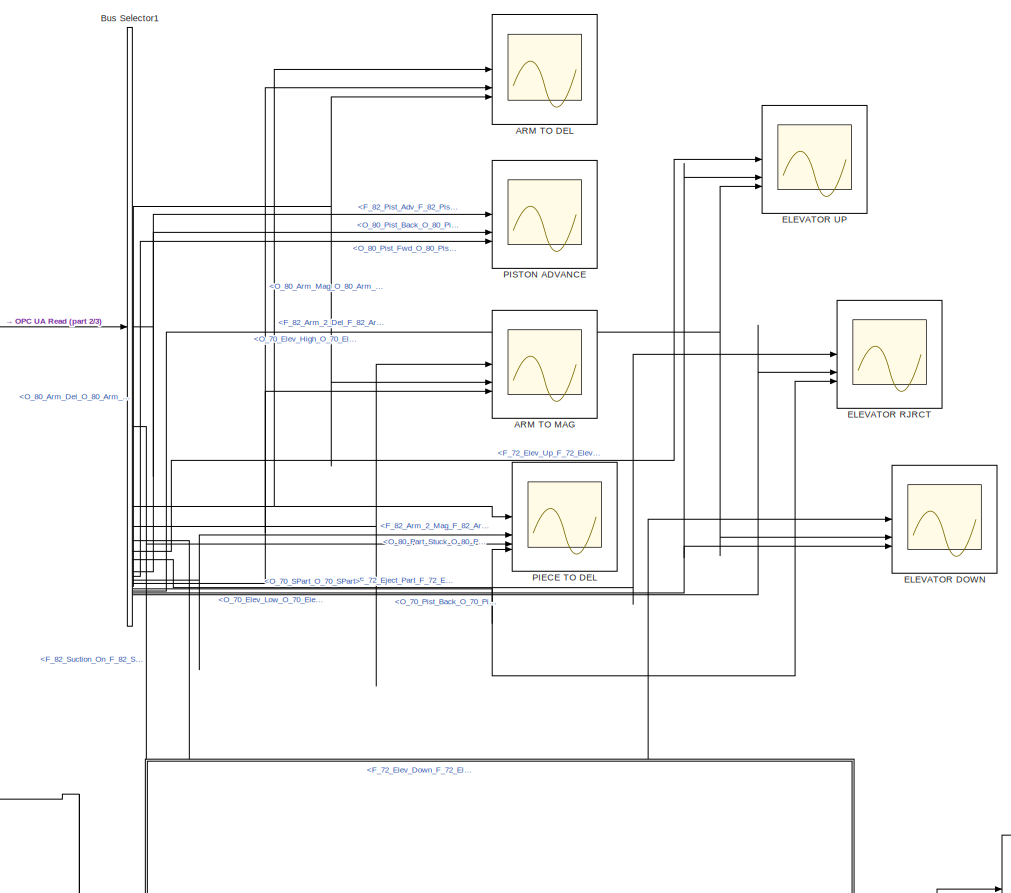
[diagram: root canvas - part 1/3, top center region]
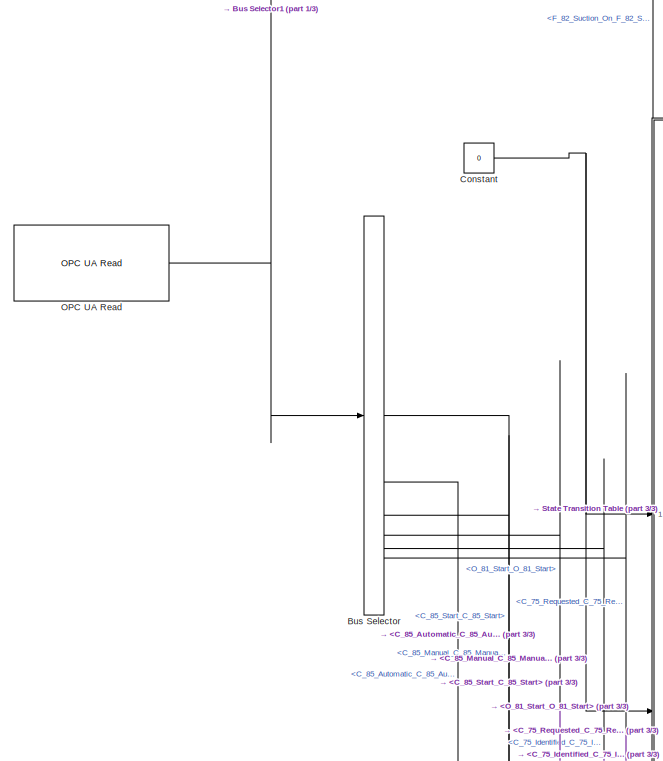
[diagram: root canvas - part 2/3, middle left region]
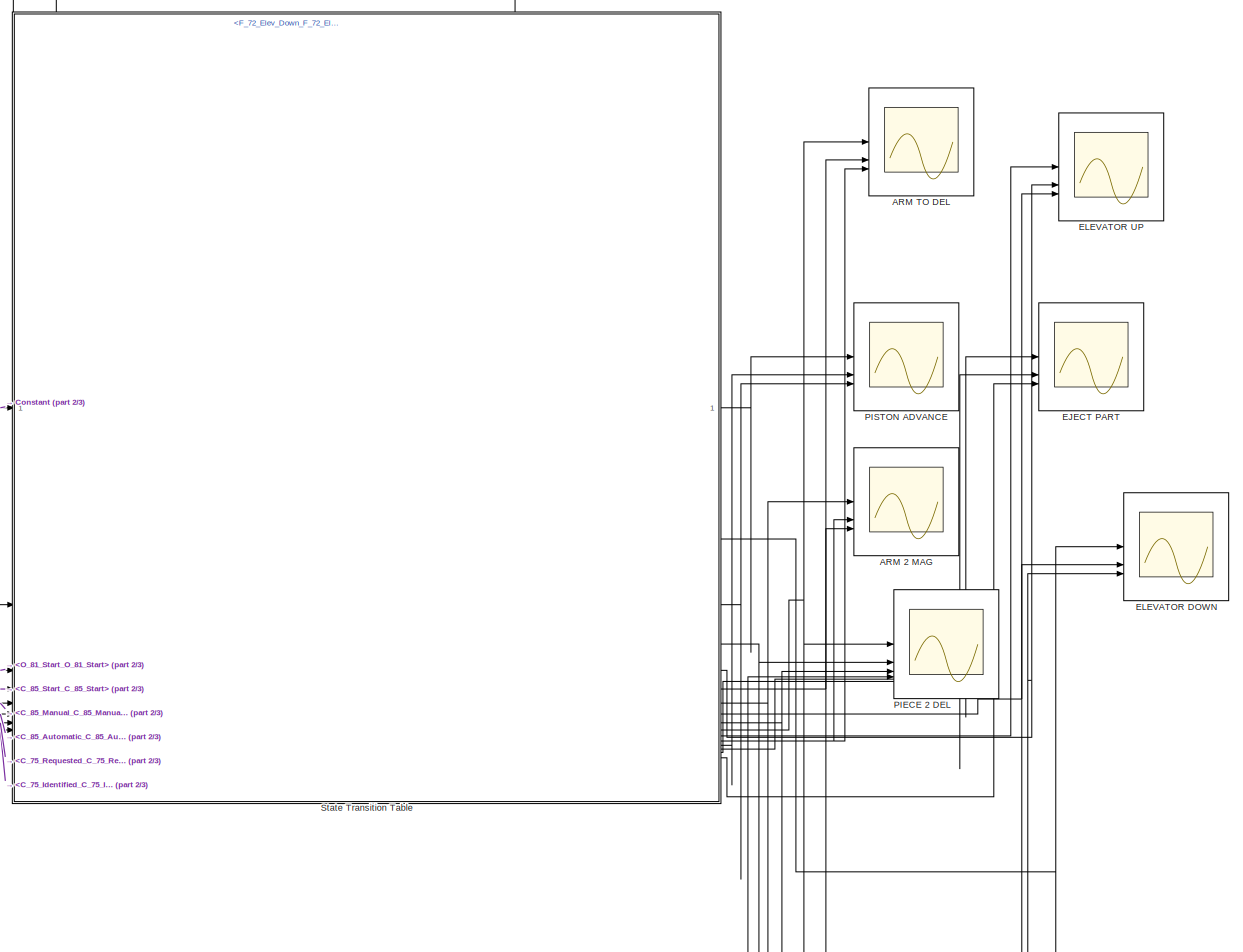
[diagram: root canvas - part 3/3, middle right region]
MODEL slx_66a3c16fe3e1
KIND model
CONFIG AbsTol = auto
CONFIG EnableMultiTasking = off
CONFIG FixedStep = 0.1
CONFIG MaxStep = auto
CONFIG MinStep = auto
CONFIG RelTol = 1e-3
CONFIG SampleTimeConstraint = Unconstrained
CONFIG SolverName = FixedStepAuto
CONFIG StartTime = 0.0
CONFIG StopTime = 30
BLOCK [Scope] ARM 2 MAG 
  Floating = off
  NumInputPorts = 3
  ScopeSpecificationString = Simulink.scopes.TimeScopeBlockCfg('CurrentConfiguration', extmgr.ConfigurationSet(extmgr.Configuration('Core','General UI',true,'FigureColor',[1 1 1]),extmgr.Configuration('Core','Source UI',true),extmgr.Configuration('Sources','WiredSimulink',true,'DataLoggingVariableName','ScopeData11'),extmgr.Configuration('Visuals','Time Domain',true,'SerializedDisplays',{struct('MinYLimReal','-0.125','MaxYLim...<+3624ch>
BLOCK [Scope] ARM TO DEL
  Floating = off
  NumInputPorts = 3
  ScopeSpecificationString = Simulink.scopes.TimeScopeBlockCfg('CurrentConfiguration', extmgr.ConfigurationSet(extmgr.Configuration('Core','General UI',true,'FigureColor',[1 1 1]),extmgr.Configuration('Core','Source UI',true),extmgr.Configuration('Sources','WiredSimulink',true),extmgr.Configuration('Visuals','Time Domain',true,'SerializedDisplays',{struct('MinYLimReal','-0.125','MaxYLimReal','1.125','YLabelReal','','MinYLimMa...<+3253ch>
BLOCK [Scope] ARM TO DEL 
  Floating = off
  NumInputPorts = 3
  ScopeSpecificationString = Simulink.scopes.TimeScopeBlockCfg('CurrentConfiguration', extmgr.ConfigurationSet(extmgr.Configuration('Core','General UI',true,'FigureColor',[1 1 1]),extmgr.Configuration('Core','Source UI',true),extmgr.Configuration('Sources','WiredSimulink',true,'DataLoggingVariableName','ScopeData1'),extmgr.Configuration('Visuals','Time Domain',true,'SerializedDisplays',{struct('MinYLimReal','-0.125','MaxYLimR...<+3305ch>
BLOCK [Scope] ARM TO MAG 
  Floating = off
  NumInputPorts = 3
  ScopeSpecificationString = Simulink.scopes.TimeScopeBlockCfg('CurrentConfiguration', extmgr.ConfigurationSet(extmgr.Configuration('Core','General UI',true,'FigureColor',[1 1 1]),extmgr.Configuration('Core','Source UI',true),extmgr.Configuration('Sources','WiredSimulink',true,'DataLoggingVariableName','ScopeData3'),extmgr.Configuration('Visuals','Time Domain',true,'SerializedDisplays',{struct('MinYLimReal','-0.125','MaxYLimR...<+3292ch>
BLOCK [BusSelector] Bus Selector
  OutputSignals = C_85_Manual_C_85_Manual,C_85_Automatic_C_85_Automatic,C_85_Start_C_85_Start,O_81_Start_O_81_Start,C_75_Identified_C_75_Identified,C_75_Requested_C_75_Requested
BLOCK [BusSelector] Bus Selector1
  OutputSignals = F_82_Pist_Adv_F_82_Pist_Adv,F_82_Suction_On_F_82_Suction_On,F_82_Suction_Off_F_82_Suction_Off,F_82_Arm_2_Del_F_82_Arm_2_Del,F_82_Arm_2_Mag_F_82_Arm_2_Mag,F_72_Elev_Down_F_72_Elev_Down,F_72_Elev_Up_F_72_Elev_Up,F_72_Eject_Part_F_72_Eject_Part,F_72_Air_On_F_72_Air_On,O_80_Pist_Back_O_80_Pist_Back,O_80_Pist_Fwd_O_80_Pist_Fwd,O_80_Part_Stuck_O_80_Part_Stuck,O_80_Arm_Mag_O_80_Arm_Mag,O_80_Arm_Del_O_80_...<+117ch>
BLOCK [Constant] Constant
  Value = 0
BLOCK [Scope] EJECT PART
  Floating = off
  NumInputPorts = 3
  ScopeSpecificationString = Simulink.scopes.TimeScopeBlockCfg('CurrentConfiguration', extmgr.ConfigurationSet(extmgr.Configuration('Core','General UI',true,'FigureColor',[1 1 1]),extmgr.Configuration('Core','Source UI',true),extmgr.Configuration('Sources','WiredSimulink',true,'DataLoggingVariableName','ScopeData10'),extmgr.Configuration('Visuals','Time Domain',true,'SerializedDisplays',{struct('MinYLimReal','-0.125','MaxYLim...<+3628ch>
BLOCK [Scope] ELEVATOR DOWN
  Floating = off
  NumInputPorts = 3
  ScopeSpecificationString = Simulink.scopes.TimeScopeBlockCfg('CurrentConfiguration', extmgr.ConfigurationSet(extmgr.Configuration('Core','General UI',true,'FigureColor',[1 1 1]),extmgr.Configuration('Core','Source UI',true),extmgr.Configuration('Sources','WiredSimulink',true,'DataLoggingVariableName','ScopeData13'),extmgr.Configuration('Visuals','Time Domain',true,'SerializedDisplays',{struct('MinYLimReal','-0.125','MaxYLim...<+3627ch>
BLOCK [Scope] ELEVATOR DOWN 
  Floating = off
  NumInputPorts = 3
  ScopeSpecificationString = Simulink.scopes.TimeScopeBlockCfg('CurrentConfiguration', extmgr.ConfigurationSet(extmgr.Configuration('Core','General UI',true,'FigureColor',[1 1 1]),extmgr.Configuration('Core','Source UI',true),extmgr.Configuration('Sources','WiredSimulink',true,'DataLoggingVariableName','ScopeData7'),extmgr.Configuration('Visuals','Time Domain',true,'SerializedDisplays',{struct('MinYLimReal','-0.125','MaxYLimR...<+3616ch>
BLOCK [Scope] ELEVATOR RJRCT 
  Floating = off
  NumInputPorts = 3
  ScopeSpecificationString = Simulink.scopes.TimeScopeBlockCfg('CurrentConfiguration', extmgr.ConfigurationSet(extmgr.Configuration('Core','General UI',true,'FigureColor',[1 1 1]),extmgr.Configuration('Core','Source UI',true),extmgr.Configuration('Sources','WiredSimulink',true,'DataLoggingVariableName','ScopeData6'),extmgr.Configuration('Visuals','Time Domain',true,'SerializedDisplays',{struct('MinYLimReal','-0.125','MaxYLimR...<+3612ch>
BLOCK [Scope] ELEVATOR UP
  Floating = off
  NumInputPorts = 3
  ScopeSpecificationString = Simulink.scopes.TimeScopeBlockCfg('CurrentConfiguration', extmgr.ConfigurationSet(extmgr.Configuration('Core','General UI',true,'FigureColor',[1 1 1]),extmgr.Configuration('Core','Source UI',true),extmgr.Configuration('Sources','WiredSimulink',true,'DataLoggingVariableName','ScopeData5'),extmgr.Configuration('Visuals','Time Domain',true,'SerializedDisplays',{struct('MinYLimReal','-0.125','MaxYLimR...<+3612ch>
BLOCK [Scope] ELEVATOR UP 
  Floating = off
  NumInputPorts = 3
  ScopeSpecificationString = Simulink.scopes.TimeScopeBlockCfg('CurrentConfiguration', extmgr.ConfigurationSet(extmgr.Configuration('Core','General UI',true,'FigureColor',[1 1 1]),extmgr.Configuration('Core','Source UI',true),extmgr.Configuration('Sources','WiredSimulink',true,'DataLoggingVariableName','ScopeData8'),extmgr.Configuration('Visuals','Time Domain',true,'SerializedDisplays',{struct('MinYLimReal','-0.125','MaxYLimR...<+3624ch>
BLOCK [Reference] OPC UA Read  REF=opcualib/OPC UA Read
  SourceBlock = opcualib/OPC UA Read
  SourceType = opcUARead
BLOCK [Scope] PIECE 2 DEL
  Floating = off
  NumInputPorts = 4
  ScopeSpecificationString = Simulink.scopes.TimeScopeBlockCfg('CurrentConfiguration', extmgr.ConfigurationSet(extmgr.Configuration('Core','General UI',true,'FigureColor',[1 1 1]),extmgr.Configuration('Core','Source UI',true),extmgr.Configuration('Sources','WiredSimulink',true,'DataLoggingVariableName','ScopeData12'),extmgr.Configuration('Visuals','Time Domain',true,'SerializedDisplays',{struct('MinYLimReal','-0.125','MaxYLim...<+4089ch>
BLOCK [Scope] PIECE TO DEL
  Floating = off
  NumInputPorts = 4
  ScopeSpecificationString = Simulink.scopes.TimeScopeBlockCfg('CurrentConfiguration', extmgr.ConfigurationSet(extmgr.Configuration('Core','General UI',true,'FigureColor',[1 1 1]),extmgr.Configuration('Core','Source UI',true),extmgr.Configuration('Sources','WiredSimulink',true,'DataLoggingVariableName','ScopeData4'),extmgr.Configuration('Visuals','Time Domain',true,'SerializedDisplays',{struct('MinYLimReal','-0.125','MaxYLimR...<+4073ch>
BLOCK [Scope] PISTON ADVANCE
  Floating = off
  NumInputPorts = 3
  ScopeSpecificationString = Simulink.scopes.TimeScopeBlockCfg('CurrentConfiguration', extmgr.ConfigurationSet(extmgr.Configuration('Core','General UI',true,'FigureColor',[1 1 1]),extmgr.Configuration('Core','Source UI',true),extmgr.Configuration('Sources','WiredSimulink',true,'DataLoggingVariableName','ScopeData2'),extmgr.Configuration('Visuals','Time Domain',true,'SerializedDisplays',{struct('MinYLimReal','-0.125','MaxYLimR...<+3296ch>
BLOCK [Scope] PISTON ADVANCE 
  Floating = off
  NumInputPorts = 3
  ScopeSpecificationString = Simulink.scopes.TimeScopeBlockCfg('CurrentConfiguration', extmgr.ConfigurationSet(extmgr.Configuration('Core','General UI',true,'FigureColor',[1 1 1]),extmgr.Configuration('Core','Source UI',true),extmgr.Configuration('Sources','WiredSimulink',true,'DataLoggingVariableName','ScopeData9'),extmgr.Configuration('Visuals','Time Domain',true,'SerializedDisplays',{struct('MinYLimReal','-0.125','MaxYLimR...<+3309ch>
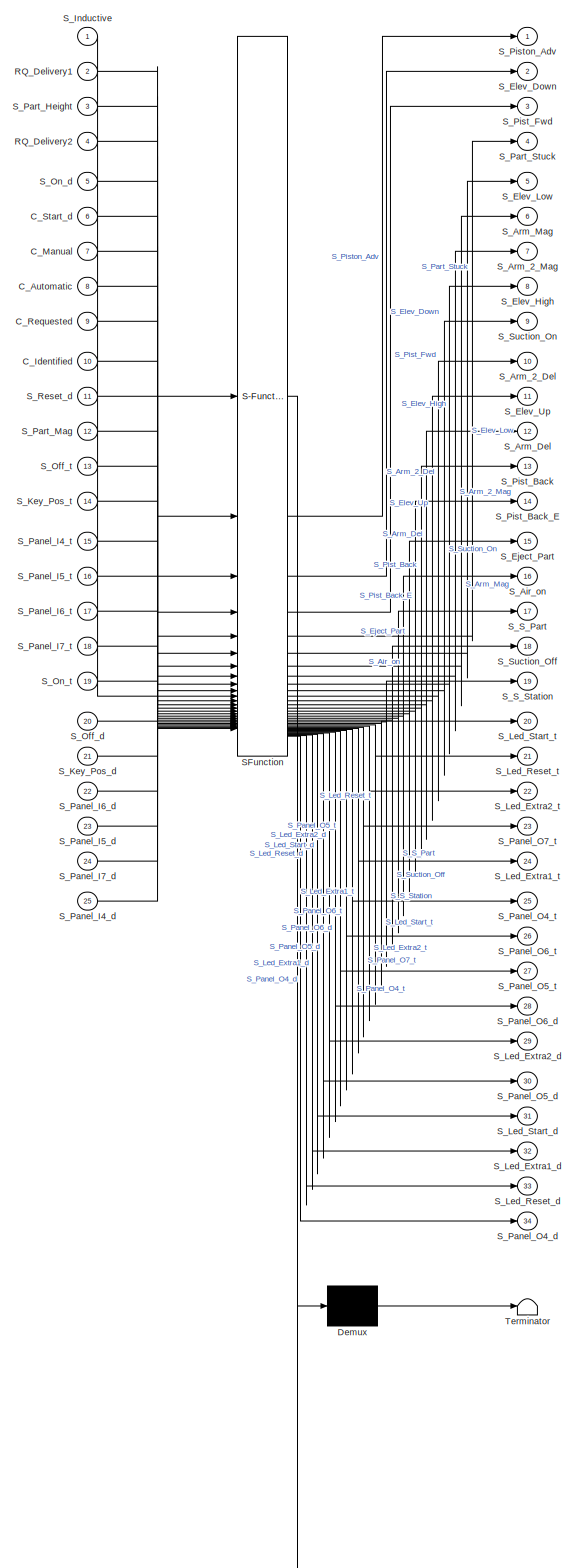
[diagram: State Transition Table - part 1/1, most of the canvas]
BLOCK [SubSystem] State Transition Table
  ErrorFcn = Stateflow.Translate.translate
  PermitHierarchicalResolution = ExplicitOnly
  PortSchema = {"entries":[{"content":{"sides":[{"content":{"connectorIds":["In1","In2","In3","In4","In5","In6","In7","In8","In9","In10","In11","In12","In13","In14","In15","In16","In17","In18","In19","In20","In21","In22","In23","In24","In25"]},"type":"ConnectorPlacement.EquallySpacedRectSide","uuid":"c1ffde1c-4698-47c1-b8e1-e37e2294cce5"},{"content":{"connectorIds":["Out1","Out2","Out3","Out4","Out5","Out6","Out...<+638ch>
  SFBlockType = State Transition Table
  TreatAsAtomicUnit = on
BLOCK [Demux] State Transition Table/ Demux 
  Outputs = 1
BLOCK [S-Function] State Transition Table/ SFunction 
  EnableBusSupport = on
  FunctionName = sf_sfun
  PortCounts = [25 35]
  SFcnIsStateOwnerBlock = off
  SFunctionDeploymentMode = off
  Tag = Stateflow S-Function 4
BLOCK [Terminator] State Transition Table/ Terminator 
BLOCK [Inport] State Transition Table/C_Automatic
  Port = 8
BLOCK [Inport] State Transition Table/C_Identified
  Port = 10
BLOCK [Inport] State Transition Table/C_Manual
  Port = 7
BLOCK [Inport] State Transition Table/C_Requested
  Port = 9
BLOCK [Inport] State Transition Table/C_Start_d
  Port = 6
BLOCK [Inport] State Transition Table/RQ_Delivery1
  Port = 2
BLOCK [Inport] State Transition Table/RQ_Delivery2
  Port = 4
BLOCK [Outport] State Transition Table/S_Air_on
  Port = 16
BLOCK [Outport] State Transition Table/S_Arm_2_Del
  Port = 10
BLOCK [Outport] State Transition Table/S_Arm_2_Mag
  Port = 7
BLOCK [Outport] State Transition Table/S_Arm_Del
  Port = 12
BLOCK [Outport] State Transition Table/S_Arm_Mag
  Port = 6
BLOCK [Outport] State Transition Table/S_Eject_Part
  Port = 15
BLOCK [Outport] State Transition Table/S_Elev_Down
  Port = 2
BLOCK [Outport] State Transition Table/S_Elev_High
  Port = 8
BLOCK [Outport] State Transition Table/S_Elev_Low
  Port = 5
BLOCK [Outport] State Transition Table/S_Elev_Up
  Port = 11
BLOCK [Inport] State Transition Table/S_Inductive
BLOCK [Inport] State Transition Table/S_Key_Pos_d
  Port = 21
BLOCK [Inport] State Transition Table/S_Key_Pos_t
  Port = 14
BLOCK [Outport] State Transition Table/S_Led_Extra1_d
  Port = 32
BLOCK [Outport] State Transition Table/S_Led_Extra1_t
  Port = 24
BLOCK [Outport] State Transition Table/S_Led_Extra2_d
  Port = 29
BLOCK [Outport] State Transition Table/S_Led_Extra2_t
  Port = 22
BLOCK [Outport] State Transition Table/S_Led_Reset_d
  Port = 33
BLOCK [Outport] State Transition Table/S_Led_Reset_t
  Port = 21
BLOCK [Outport] State Transition Table/S_Led_Start_d
  Port = 31
BLOCK [Outport] State Transition Table/S_Led_Start_t
  Port = 20
BLOCK [Inport] State Transition Table/S_Off_d
  Port = 20
BLOCK [Inport] State Transition Table/S_Off_t
  Port = 13
BLOCK [Inport] State Transition Table/S_On_d
  Port = 5
BLOCK [Inport] State Transition Table/S_On_t
  Port = 19
BLOCK [Inport] State Transition Table/S_Panel_I4_d
  Port = 25
BLOCK [Inport] State Transition Table/S_Panel_I4_t
  Port = 15
BLOCK [Inport] State Transition Table/S_Panel_I5_d
  Port = 23
BLOCK [Inport] State Transition Table/S_Panel_I5_t
  Port = 16
BLOCK [Inport] State Transition Table/S_Panel_I6_d
  Port = 22
BLOCK [Inport] State Transition Table/S_Panel_I6_t
  Port = 17
BLOCK [Inport] State Transition Table/S_Panel_I7_d
  Port = 24
BLOCK [Inport] State Transition Table/S_Panel_I7_t
  Port = 18
BLOCK [Outport] State Transition Table/S_Panel_O4_d
  Port = 34
BLOCK [Outport] State Transition Table/S_Panel_O4_t
  Port = 25
BLOCK [Outport] State Transition Table/S_Panel_O5_d
  Port = 30
BLOCK [Outport] State Transition Table/S_Panel_O5_t
  Port = 27
BLOCK [Outport] State Transition Table/S_Panel_O6_d
  Port = 28
BLOCK [Outport] State Transition Table/S_Panel_O6_t
  Port = 26
BLOCK [Outport] State Transition Table/S_Panel_O7_t
  Port = 23
BLOCK [Inport] State Transition Table/S_Part_Height
  Port = 3
BLOCK [Inport] State Transition Table/S_Part_Mag
  Port = 12
BLOCK [Outport] State Transition Table/S_Part_Stuck
  Port = 4
BLOCK [Outport] State Transition Table/S_Pist_Back
  Port = 13
BLOCK [Outport] State Transition Table/S_Pist_Back_E
  Port = 14
BLOCK [Outport] State Transition Table/S_Pist_Fwd
  Port = 3
BLOCK [Outport] State Transition Table/S_Piston_Adv
BLOCK [Inport] State Transition Table/S_Reset_d
  Port = 11
BLOCK [Outport] State Transition Table/S_S_Part
  Port = 17
BLOCK [Outport] State Transition Table/S_S_Station
  Port = 19
BLOCK [Outport] State Transition Table/S_Suction_Off
  Port = 18
BLOCK [Outport] State Transition Table/S_Suction_On
  Port = 9
LINE Bus Selector1:1 -> PISTON ADVANCE:1
LINE Bus Selector1:10 -> PISTON ADVANCE:2
LINE Bus Selector1:11 -> PISTON ADVANCE:3
LINE Bus Selector1:12 -> PIECE TO DEL:2
NET Bus Selector1:13 -> ARM TO DEL:2, ARM TO MAG :3
NET Bus Selector1:14 -> ARM TO DEL:3, ARM TO MAG :2
NET Bus Selector1:15 -> ELEVATOR RJRCT :3, PIECE TO DEL:4
NET Bus Selector1:16 -> ELEVATOR DOWN :2, ELEVATOR UP:3
NET Bus Selector1:17 -> ELEVATOR DOWN :3, ELEVATOR UP:2
LINE Bus Selector1:18 -> ELEVATOR RJRCT :2
LINE Bus Selector1:2 -> PIECE TO DEL:3
NET Bus Selector1:4 -> ARM TO DEL:1, PIECE TO DEL:1
LINE Bus Selector1:5 -> ARM TO MAG :1
LINE Bus Selector1:6 -> ELEVATOR DOWN :1
LINE Bus Selector1:7 -> ELEVATOR UP:1
LINE Bus Selector1:8 -> ELEVATOR RJRCT :1
LINE Bus Selector:1 -> State Transition Table:7
LINE Bus Selector:2 -> State Transition Table:8
LINE Bus Selector:3 -> State Transition Table:6
LINE Bus Selector:4 -> State Transition Table:5
LINE Bus Selector:5 -> State Transition Table:10
LINE Bus Selector:6 -> State Transition Table:9
NET Constant:1 -> State Transition Table:1, State Transition Table:3
NET OPC UA Read:1 -> Bus Selector1:1, Bus Selector:1
LINE State Transition Table:1 -> PISTON ADVANCE :1
NET State Transition Table:10 -> ARM TO DEL :1, PIECE 2 DEL:1
LINE State Transition Table:11 -> ELEVATOR UP :1
NET State Transition Table:12 -> ARM 2 MAG :2, ARM TO DEL :3
LINE State Transition Table:13 -> PISTON ADVANCE :2
LINE State Transition Table:14 -> EJECT PART:2
LINE State Transition Table:15 -> EJECT PART:1
NET State Transition Table:17 -> EJECT PART:3, PIECE 2 DEL:4
LINE State Transition Table:2 -> ELEVATOR DOWN:1
LINE State Transition Table:3 -> PISTON ADVANCE :3
LINE State Transition Table:4 -> PIECE 2 DEL:2
NET State Transition Table:5 -> ELEVATOR DOWN:3, ELEVATOR UP :2
NET State Transition Table:6 -> ARM 2 MAG :3, ARM TO DEL :2
LINE State Transition Table:7 -> ARM 2 MAG :1
NET State Transition Table:8 -> ELEVATOR DOWN:2, ELEVATOR UP :3
LINE State Transition Table:9 -> PIECE 2 DEL:3
note: NET lines group one-source signal fan-out (src -> all destinations, sorted); 1:1 wires keep LINE
CHART State Transition Table states=96 transitions=271
  STATE_LABEL 'state1\nS_Arm_2_Del=0;\nS_Arm_2_Mag=0;\nS_Piston_Adv=0;\nS_Elev_Up=0;\nS_Elev_Down=0;\nS_Eject_Part=0;\nS_Air_on=0;\nS_Suction_On=0;\nS_Suction_Off=0;\nS_Arm_Mag=1;\nS_Arm_Del=0;\nS_Part_Stuck=0;\nS_Pist_Fwd=0;\nS_Pist_Back=1;\nS_Elev_Low=1;\nS_Elev_High=0;\nS_S_Part=0;\nS_Pist_Back_E=1;\nS_S_Station=0;\nS_On_t;\nS_Off_t;\nS_Key_Pos_t;\nS_Panel_I4_t;\nS_Panel_I5_t;\nS_Panel_I6_t;\nS_Panel_I7_t;\nS_Led_Start_t=0;\nS_Led_Reset...<+301ch>'
  STATE_LABEL 'dis_cont_arm_to_del \nS_Arm_2_Del=1;\nS_Arm_2_Mag=0;\nS_Piston_Adv=0;\nS_Elev_Up=0;\nS_Elev_Down=0;\nS_Eject_Part=0;\nS_Air_on=0;\nS_Suction_On=0;\n'
  STATE_LABEL 'dis_cont_arm_to_del_1\n'
  STATE_LABEL 'after(0.73,sec)\n{S_Arm_Mag=0;}'
  STATE_LABEL 'dis_cont_arm_to_del_1\n'
  STATE_LABEL 'piston_advance\nS_Arm_2_Del=0;\nS_Arm_2_Mag=0;\nS_Piston_Adv=1;\nS_Elev_Up=0;\nS_Elev_Down=0;\nS_Eject_Part=0;\nS_Air_on=0;\nS_Suction_On=0;\n'
  STATE_LABEL 'piston_advance_1\n'
  STATE_LABEL '{S_Pist_Back=0;\nS_Pist_Fwd=1;}'
  STATE_LABEL 'piston_advance_1\n'
  STATE_LABEL 'arm_to_mag\nS_Arm_2_Del=0;\nS_Arm_2_Mag=1;\nS_Piston_Adv=0;\nS_Elev_Up=0;\nS_Elev_Down=0;\nS_Eject_Part=0;\nS_Air_on=0;\nS_Suction_On=0;\n'
  STATE_LABEL 'arm_to_mag_1\n'
  STATE_LABEL 'after(0.5,sec)\n{S_Arm_Del=0;}'
  STATE_LABEL 'arm_to_mag_1\n'
  STATE_LABEL 'arm_with_piece_to_del\nS_Arm_2_Del=1;\nS_Arm_2_Mag=0;\nS_Piston_Adv=0;\nS_Elev_Up=0;\nS_Elev_Down=0;\nS_Eject_Part=0;\nS_Air_on=0;\nS_Suction_On=1;\n'
  STATE_LABEL 'arm_with_piece_to_del_1\n'
  STATE_LABEL 'after(0.73,sec)\n{S_Arm_Mag=0;}'
  STATE_LABEL 'arm_with_piece_to_del_1\n'
  STATE_LABEL 'arm_to_mag1\nS_Arm_2_Del=0;\nS_Arm_2_Mag=1;\nS_Piston_Adv=0;\nS_Elev_Up=0;\nS_Elev_Down=0;\nS_Eject_Part=0;\nS_Air_on=0;\nS_Suction_On=0;\n'
  STATE_LABEL 'arm_to_mag1_1\n'
  STATE_LABEL 'arm_to_mag1_2'
  STATE_LABEL 'after(0.2,sec)\n{S_Arm_Del=0;}'
  STATE_LABEL '[after(0.5,sec)]\n{S_Suction_Off=0;}'
  STATE_LABEL 'arm_to_mag1_1\n'
  STATE_LABEL 'arm_to_mag1_2'
  STATE_LABEL 'elevator_up\nS_Arm_2_Del=0;\nS_Arm_2_Mag=0;\nS_Piston_Adv=0;\nS_Elev_Up=1;\nS_Elev_Down=0;\nS_Eject_Part=0;\nS_Air_on=0;\nS_Suction_On=0;'
  STATE_LABEL 'elevator_up_1'
  STATE_LABEL 'elevator_up_2'
  STATE_LABEL 'elevator_up_3'
  STATE_LABEL 'elevator_up_4'
  STATE_LABEL 'after(0.65,sec)\n{S_Elev_High=1;}'
  STATE_LABEL 'after(0.5,sec)\n{S_Elev_Low=0;}'
  STATE_LABEL 'after(0.1,sec)\n{S_S_Station=1;}'
  STATE_LABEL 'after(0.3,sec)\n{S_S_Station=1;}'
  STATE_LABEL 'elevator_up_1'
  STATE_LABEL 'elevator_up_2'
  STATE_LABEL 'elevator_up_3'
  STATE_LABEL 'elevator_up_4'
  STATE_LABEL 'decision '
  STATE_LABEL 'accepted\nS_Arm_2_Del=0;\nS_Arm_2_Mag=0;\nS_Piston_Adv=0;\nS_Elev_Up=1;\nS_Elev_Down=0;\nS_Eject_Part=1;\nS_Air_on=1;\nS_Suction_On=0;'
  STATE_LABEL 'accepted_1'
CHART  states=0 transitions=0
